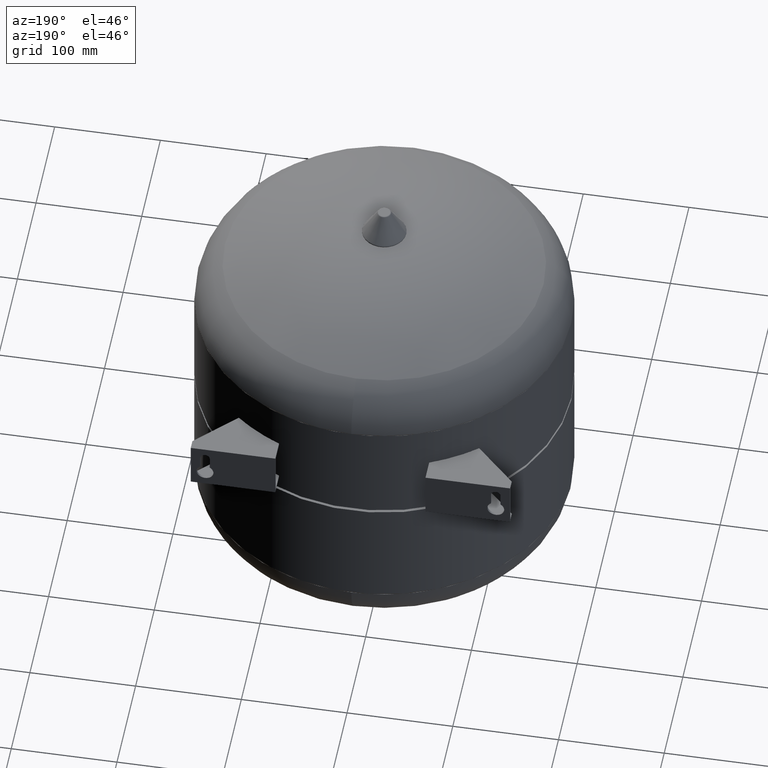
[diagram: clean part render]
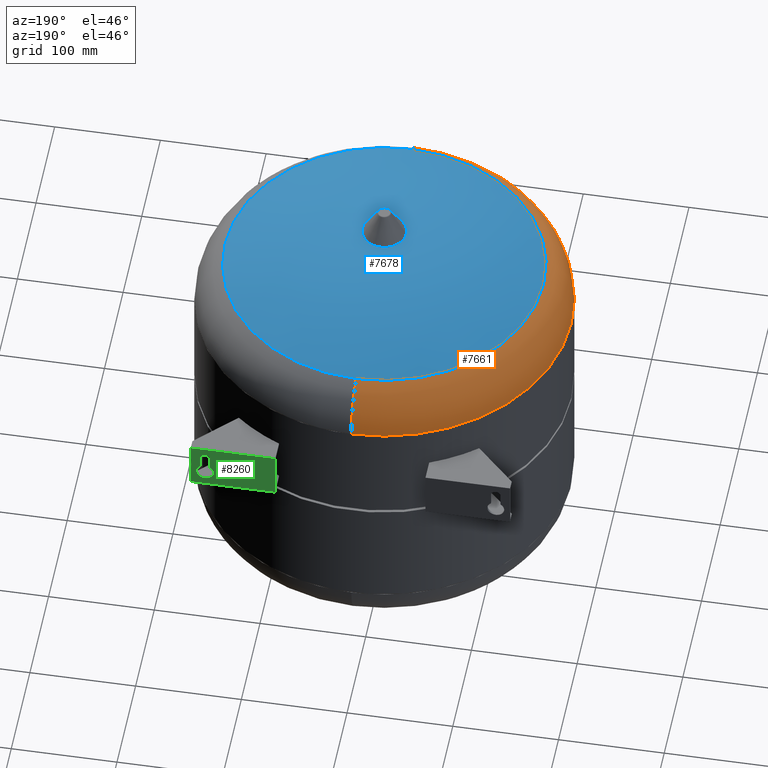
[diagram: same view with three faces highlighted in distinct colors, each labeled with its STEP entity id]
A machine part, auxiliary view with three faces highlighted in distinct colors.
Their STEP definitions:

[orange] entity #7661 — the highlighted toroidal blend (fillet) surface has major radius 121 mm and minor (blend) radius 56 mm.
#7566=CARTESIAN_POINT('',(-177.0,-7.451053E-017,340.24336987332833));
#7567=VERTEX_POINT('',#7566);
#7591=CARTESIAN_POINT('',(-2.348140E-014,-177.0,340.24336987332828));
#7592=VERTEX_POINT('',#7591);
#7600=CARTESIAN_POINT('',(-4.829614E-018,-7.451053E-017,340.24336987332833));
#7601=DIRECTION('',(0.0,0.0,-1.0));
#7602=DIRECTION('',(-1.0,0.0,0.0));
#7603=AXIS2_PLACEMENT_3D('',#7600,#7601,#7602);
#7604=CIRCLE('',#7603,177.0);
#7605=EDGE_CURVE('',#7592,#7567,#7604,.T.);
#7610=CARTESIAN_POINT('',(-1.805872E-015,-7.451053E-017,340.24336987332833));
#7611=DIRECTION('',(1.984475E-017,3.061617E-016,-1.0));
#7612=DIRECTION('',(0.0,1.0,0.0));
#7613=AXIS2_PLACEMENT_3D('',#7610,#7611,#7612);
#7614=TOROIDAL_SURFACE('',#7613,121.00000000000003,56.000000000000007);
#7615=CARTESIAN_POINT('',(-1.805872E-015,177.0,340.24336987332839));
#7616=VERTEX_POINT('',#7615);
#7617=CARTESIAN_POINT('',(-2.747769E-015,150.71929824561403,387.70665370186521));
#7618=VERTEX_POINT('',#7617);
#7619=CARTESIAN_POINT('',(-1.805872E-015,121.00000000000003,340.24336987332839));
#7620=DIRECTION('',(1.0,0.0,0.0));
#7621=DIRECTION('',(0.0,1.0,0.0));
#7622=AXIS2_PLACEMENT_3D('',#7619,#7620,#7621);
#7623=CIRCLE('',#7622,56.000000000000007);
#7624=EDGE_CURVE('',#7616,#7618,#7623,.T.);
#7625=ORIENTED_EDGE('',*,*,#7624,.F.);
#7626=CARTESIAN_POINT('',(-4.829614E-018,-7.451053E-017,340.24336987332833));
#7627=DIRECTION('',(0.0,0.0,-1.0));
#7628=DIRECTION('',(-1.0,0.0,0.0));
#7629=AXIS2_PLACEMENT_3D('',#7626,#7627,#7628);
#7630=CIRCLE('',#7629,177.0);
#7631=EDGE_CURVE('',#7567,#7616,#7630,.T.);
#7632=ORIENTED_EDGE('',*,*,#7631,.F.);
#7633=ORIENTED_EDGE('',*,*,#7605,.F.);
#7634=CARTESIAN_POINT('',(-2.120495E-014,-150.71929824561408,387.70665370186509));
#7635=VERTEX_POINT('',#7634);
#7636=CARTESIAN_POINT('',(-1.662361E-014,-121.00000000000003,340.24336987332828));
#7637=DIRECTION('',(-1.0,0.0,0.0));
#7638=DIRECTION('',(0.0,-1.0,0.0));
#7639=AXIS2_PLACEMENT_3D('',#7636,#7637,#7638);
#7640=CIRCLE('',#7639,56.000000000000007);
#7641=EDGE_CURVE('',#7592,#7635,#7640,.T.);
#7642=ORIENTED_EDGE('',*,*,#7641,.T.);
#7643=CARTESIAN_POINT('',(-150.71929824561406,-1.460595E-014,387.70665370186515));
#7644=VERTEX_POINT('',#7643);
#7645=CARTESIAN_POINT('',(-9.467265E-016,-1.460595E-014,387.70665370186515));
#7646=DIRECTION('',(0.0,0.0,-1.0));
#7647=DIRECTION('',(-1.0,0.0,0.0));
#7648=AXIS2_PLACEMENT_3D('',#7645,#7646,#7647);
#7649=CIRCLE('',#7648,150.71929824561406);
#7650=EDGE_CURVE('',#7635,#7644,#7649,.T.);
#7651=ORIENTED_EDGE('',*,*,#7650,.T.);
#7652=CARTESIAN_POINT('',(-9.467265E-016,-1.460595E-014,387.70665370186515));
#7653=DIRECTION('',(0.0,0.0,-1.0));
#7654=DIRECTION('',(-1.0,0.0,0.0));
#7655=AXIS2_PLACEMENT_3D('',#7652,#7653,#7654);
#7656=CIRCLE('',#7655,150.71929824561406);
#7657=EDGE_CURVE('',#7644,#7618,#7656,.T.);
#7658=ORIENTED_EDGE('',*,*,#7657,.T.);
#7659=EDGE_LOOP('',(#7625,#7632,#7633,#7642,#7651,#7658));
#7660=FACE_OUTER_BOUND('',#7659,.T.);
#7661=ADVANCED_FACE('',(#7660),#7614,.T.);

[blue] entity #7678 — the highlighted spherical surface has radius 284 mm.
#7617=CARTESIAN_POINT('',(-2.747769E-015,150.71929824561403,387.70665370186521));
#7618=VERTEX_POINT('',#7617);
#7634=CARTESIAN_POINT('',(-2.120495E-014,-150.71929824561408,387.70665370186509));
#7635=VERTEX_POINT('',#7634);
#7643=CARTESIAN_POINT('',(-150.71929824561406,-1.460595E-014,387.70665370186515));
#7644=VERTEX_POINT('',#7643);
#7645=CARTESIAN_POINT('',(-9.467265E-016,-1.460595E-014,387.70665370186515));
#7646=DIRECTION('',(0.0,0.0,-1.0));
#7647=DIRECTION('',(-1.0,0.0,0.0));
#7648=AXIS2_PLACEMENT_3D('',#7645,#7646,#7647);
#7649=CIRCLE('',#7648,150.71929824561406);
#7650=EDGE_CURVE('',#7635,#7644,#7649,.T.);
#7652=CARTESIAN_POINT('',(-9.467265E-016,-1.460595E-014,387.70665370186515));
#7653=DIRECTION('',(0.0,0.0,-1.0));
#7654=DIRECTION('',(-1.0,0.0,0.0));
#7655=AXIS2_PLACEMENT_3D('',#7652,#7653,#7654);
#7656=CIRCLE('',#7655,150.71929824561406);
#7657=EDGE_CURVE('',#7644,#7618,#7656,.T.);
#7662=CARTESIAN_POINT('',(-4.727137E-014,5.908921E-014,146.99999999999989));
#7663=DIRECTION('',(0.0,1.0,0.0));
#7664=DIRECTION('',(1.0,0.0,0.0));
#7665=AXIS2_PLACEMENT_3D('',#7662,#7663,#7664);
#7666=SPHERICAL_SURFACE('',#7665,284.0);
#7667=ORIENTED_EDGE('',*,*,#7657,.F.);
#7668=ORIENTED_EDGE('',*,*,#7650,.F.);
#7669=CARTESIAN_POINT('',(-9.467265E-016,-1.460595E-014,387.70665370186515));
#7670=DIRECTION('',(0.0,0.0,-1.0));
#7671=DIRECTION('',(-1.0,0.0,0.0));
#7672=AXIS2_PLACEMENT_3D('',#7669,#7670,#7671);
#7673=CIRCLE('',#7672,150.71929824561406);
#7674=EDGE_CURVE('',#7618,#7635,#7673,.T.);
#7675=ORIENTED_EDGE('',*,*,#7674,.F.);
#7676=EDGE_LOOP('',(#7667,#7668,#7675));
#7677=FACE_OUTER_BOUND('',#7676,.T.);
#7678=ADVANCED_FACE('',(#7677),#7666,.T.);

[green] entity #8260 — the highlighted planar face has unit normal (0, -1, 0).
#7744=CARTESIAN_POINT('',(142.0,182.0,287.74999999999409));
#7745=VERTEX_POINT('',#7744);
#7752=CARTESIAN_POINT('',(142.0,182.0,276.36437827765496));
#7753=VERTEX_POINT('',#7752);
#7754=CARTESIAN_POINT('',(142.0,182.0,287.74999999999409));
#7755=DIRECTION('',(0.0,0.0,-1.0));
#7756=VECTOR('',#7755,11.385621722339124);
#7757=LINE('',#7754,#7756);
#7758=EDGE_CURVE('',#7745,#7753,#7757,.T.);
#7804=CARTESIAN_POINT('',(133.0,182.0,287.74999999999409));
#7805=VERTEX_POINT('',#7804);
#7812=CARTESIAN_POINT('',(137.5,182.0,287.74999999999409));
#7813=DIRECTION('',(0.0,1.0,0.0));
#7814=DIRECTION('',(0.0,0.0,1.0));
#7815=AXIS2_PLACEMENT_3D('',#7812,#7813,#7814);
#7816=CIRCLE('',#7815,4.5);
#7817=EDGE_CURVE('',#7805,#7745,#7816,.T.);
#7836=CARTESIAN_POINT('',(133.0,182.0,276.36437827765621));
#7837=VERTEX_POINT('',#7836);
#7844=CARTESIAN_POINT('',(133.0,182.0,276.36437827765621));
#7845=DIRECTION('',(0.0,0.0,1.0));
#7846=VECTOR('',#7845,11.385621722337874);
#7847=LINE('',#7844,#7846);
#7848=EDGE_CURVE('',#7837,#7805,#7847,.T.);
#7888=CARTESIAN_POINT('',(137.49999999999909,182.0,269.74999999999409));
#7889=DIRECTION('',(0.0,1.0,0.0));
#7890=DIRECTION('',(-1.377663E-013,0.0,-1.0));
#7891=AXIS2_PLACEMENT_3D('',#7888,#7889,#7890);
#7892=CIRCLE('',#7891,7.999999999999998);
#7893=EDGE_CURVE('',#7753,#7837,#7892,.T.);
#8052=CARTESIAN_POINT('',(71.0,182.0,254.50000000000003));
#8053=VERTEX_POINT('',#8052);
#8060=CARTESIAN_POINT('',(151.0,182.0,254.5));
#8061=VERTEX_POINT('',#8060);
#8062=CARTESIAN_POINT('',(71.0,182.0,254.50000000000003));
#8063=DIRECTION('',(1.0,0.0,0.0));
#8064=VECTOR('',#8063,80.0);
#8065=LINE('',#8062,#8064);
#8066=EDGE_CURVE('',#8053,#8061,#8065,.T.);
#8156=CARTESIAN_POINT('',(71.0,182.0,299.5));
#8157=VERTEX_POINT('',#8156);
#8164=CARTESIAN_POINT('',(71.0,182.0,299.5));
#8165=DIRECTION('',(0.0,0.0,-1.0));
#8166=VECTOR('',#8165,44.999999999999972);
#8167=LINE('',#8164,#8166);
#8168=EDGE_CURVE('',#8157,#8053,#8167,.T.);
#8181=CARTESIAN_POINT('',(151.0,182.0,299.5));
#8182=VERTEX_POINT('',#8181);
#8189=CARTESIAN_POINT('',(71.0,182.0,299.5));
#8190=DIRECTION('',(1.0,0.0,0.0));
#8191=VECTOR('',#8190,80.0);
#8192=LINE('',#8189,#8191);
#8193=EDGE_CURVE('',#8157,#8182,#8192,.T.);
#8206=CARTESIAN_POINT('',(151.0,182.0,299.5));
#8207=DIRECTION('',(0.0,0.0,-1.0));
#8208=VECTOR('',#8207,45.0);
#8209=LINE('',#8206,#8208);
#8210=EDGE_CURVE('',#8182,#8061,#8209,.T.);
#8243=CARTESIAN_POINT('',(129.75,182.0,277.0));
#8244=DIRECTION('',(0.0,-1.0,0.0));
#8245=DIRECTION('',(-1.0,0.0,0.0));
#8246=AXIS2_PLACEMENT_3D('',#8243,#8244,#8245);
#8247=PLANE('',#8246);
#8248=ORIENTED_EDGE('',*,*,#8210,.T.);
#8249=ORIENTED_EDGE('',*,*,#8066,.F.);
#8250=ORIENTED_EDGE('',*,*,#8168,.F.);
#8251=ORIENTED_EDGE('',*,*,#8193,.T.);
#8252=EDGE_LOOP('',(#8248,#8249,#8250,#8251));
#8253=FACE_OUTER_BOUND('',#8252,.T.);
#8254=ORIENTED_EDGE('',*,*,#7848,.F.);
#8255=ORIENTED_EDGE('',*,*,#7893,.F.);
#8256=ORIENTED_EDGE('',*,*,#7758,.F.);
#8257=ORIENTED_EDGE('',*,*,#7817,.F.);
#8258=EDGE_LOOP('',(#8254,#8255,#8256,#8257));
#8259=FACE_BOUND('',#8258,.T.);
#8260=ADVANCED_FACE('',(#8253,#8259),#8247,.F.);